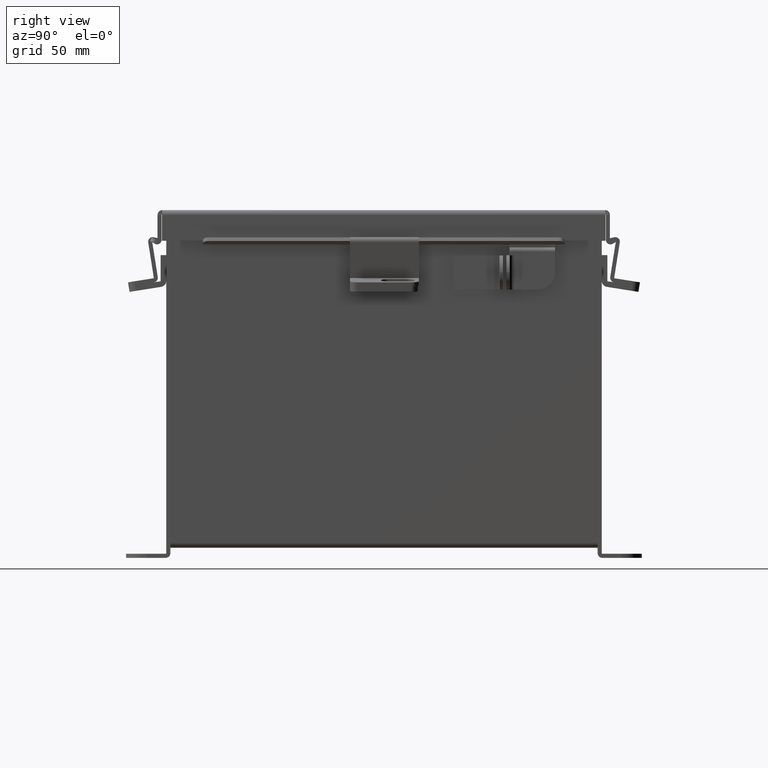
[diagram: clean part render]
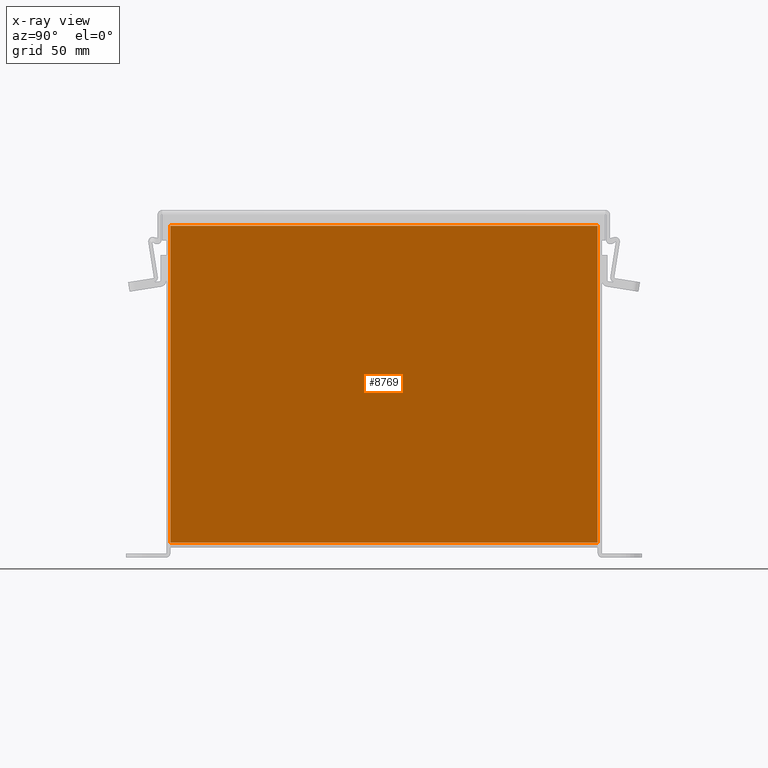
[diagram: x-ray — body ghosted, one internal face saturated and labeled with its STEP entity id]
A machine part, right view, then the same camera in x-ray: the body is ghosted and one INTERNAL B-rep face — a face not visible from any outside direction — is saturated and labeled: STEP entity #8769.
In plain terms, the highlighted planar face has unit normal (-1, 0, 0).
Its self-contained STEP definition (entity closure, byte-faithful):
#762 = CARTESIAN_POINT ( 'NONE',  ( 2.925300000000000500, -3.925299999999999100, 0.01300000000000006500 ) ) ;
#997 = ORIENTED_EDGE ( 'NONE', *, *, #8773, .F. ) ;
#1355 = EDGE_LOOP ( 'NONE', ( #11591, #2889, #2997, #997 ) ) ;
#1888 = LINE ( 'NONE', #14244, #4297 ) ;
#1915 = LINE ( 'NONE', #5258, #14167 ) ;
#2053 = VERTEX_POINT ( 'NONE', #762 ) ;
#2889 = ORIENTED_EDGE ( 'NONE', *, *, #5413, .F. ) ;
#2997 = ORIENTED_EDGE ( 'NONE', *, *, #7067, .F. ) ;
#3075 = VERTEX_POINT ( 'NONE', #8825 ) ;
#3084 = CARTESIAN_POINT ( 'NONE',  ( 2.925300000000000500, 3.925300000000000500, 0.01300000000000069700 ) ) ;
#3309 = LINE ( 'NONE', #7707, #12385 ) ;
#4297 = VECTOR ( 'NONE', #5981, 39.37007874015748100 ) ;
#5258 = CARTESIAN_POINT ( 'NONE',  ( 2.925300000000000500, -3.925299999999999100, 0.0000000000000000000 ) ) ;
#5372 = PLANE ( 'NONE',  #7825 ) ;
#5413 = EDGE_CURVE ( 'NONE', #3075, #14477, #3309, .T. ) ;
#5981 = DIRECTION ( 'NONE',  ( 3.455316574900958600E-015, -1.867738689135653700E-016, 1.000000000000000000 ) ) ;
#5996 = EDGE_CURVE ( 'NONE', #14477, #2053, #1915, .T. ) ;
#6135 = VECTOR ( 'NONE', #12515, 39.37007874015748100 ) ;
#6608 = DIRECTION ( 'NONE',  ( -1.000000000000000000, 0.0000000000000000000, 3.455316574900958600E-015 ) ) ;
#7067 = EDGE_CURVE ( 'NONE', #11440, #3075, #1888, .T. ) ;
#7707 = CARTESIAN_POINT ( 'NONE',  ( 2.925300000000020900, 3.925299999999999100, 5.837599999999999200 ) ) ;
#7802 = CARTESIAN_POINT ( 'NONE',  ( 2.925300000000000500, -3.925299999999999100, 0.01300000000000011600 ) ) ;
#7825 = AXIS2_PLACEMENT_3D ( 'NONE', #13689, #6608, #14880 ) ;
#8517 = CARTESIAN_POINT ( 'NONE',  ( 2.925300000000020900, -3.925299999999999100, 5.837599999999999200 ) ) ;
#8769 = ADVANCED_FACE ( 'NONE', ( #15203 ), #5372, .T. ) ;
#8773 = EDGE_CURVE ( 'NONE', #2053, #11440, #12436, .T. ) ;
#8825 = CARTESIAN_POINT ( 'NONE',  ( 2.925300000000020900, 3.925299999999999100, 5.837599999999999200 ) ) ;
#10087 = DIRECTION ( 'NONE',  ( -0.0000000000000000000, -1.000000000000000000, -0.0000000000000000000 ) ) ;
#11440 = VERTEX_POINT ( 'NONE', #3084 ) ;
#11591 = ORIENTED_EDGE ( 'NONE', *, *, #5996, .F. ) ;
#12385 = VECTOR ( 'NONE', #10087, 39.37007874015748100 ) ;
#12436 = LINE ( 'NONE', #7802, #6135 ) ;
#12515 = DIRECTION ( 'NONE',  ( 2.404758783435167000E-031, 1.000000000000000000, 6.959590333641414100E-017 ) ) ;
#13522 = DIRECTION ( 'NONE',  ( -3.455316574900958600E-015, -0.0000000000000000000, -1.000000000000000000 ) ) ;
#13689 = CARTESIAN_POINT ( 'NONE',  ( 2.925300000000000500, 0.0000000000000000000, -1.036394832596379800E-014 ) ) ;
#14167 = VECTOR ( 'NONE', #13522, 39.37007874015748100 ) ;
#14244 = CARTESIAN_POINT ( 'NONE',  ( 2.925300000000020900, 3.925299999999999100, 5.850600000000000000 ) ) ;
#14477 = VERTEX_POINT ( 'NONE', #8517 ) ;
#14880 = DIRECTION ( 'NONE',  ( 3.455316574900958600E-015, 0.0000000000000000000, 1.000000000000000000 ) ) ;
#15203 = FACE_OUTER_BOUND ( 'NONE', #1355, .T. ) ;